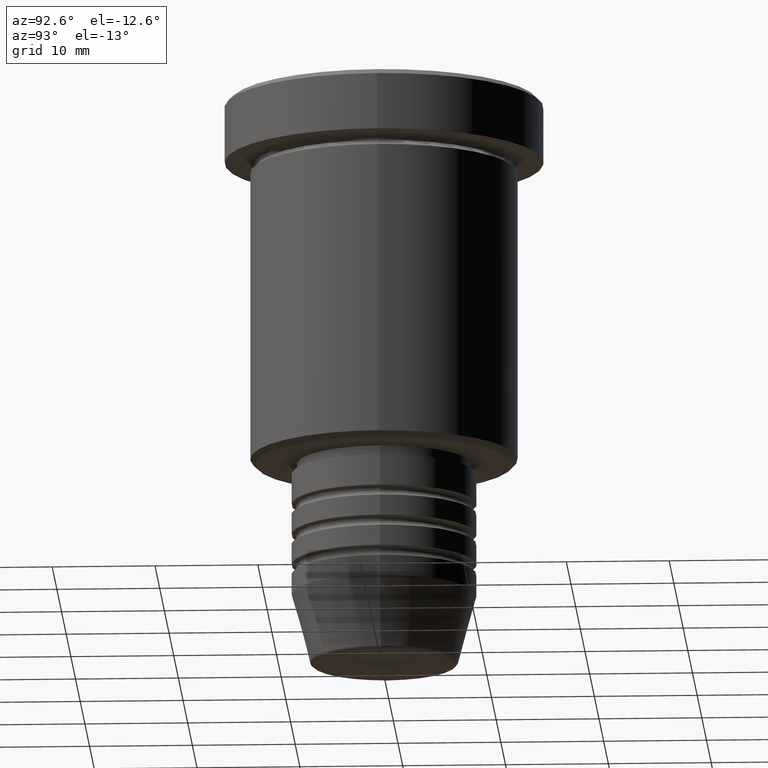
[diagram: clean part render]
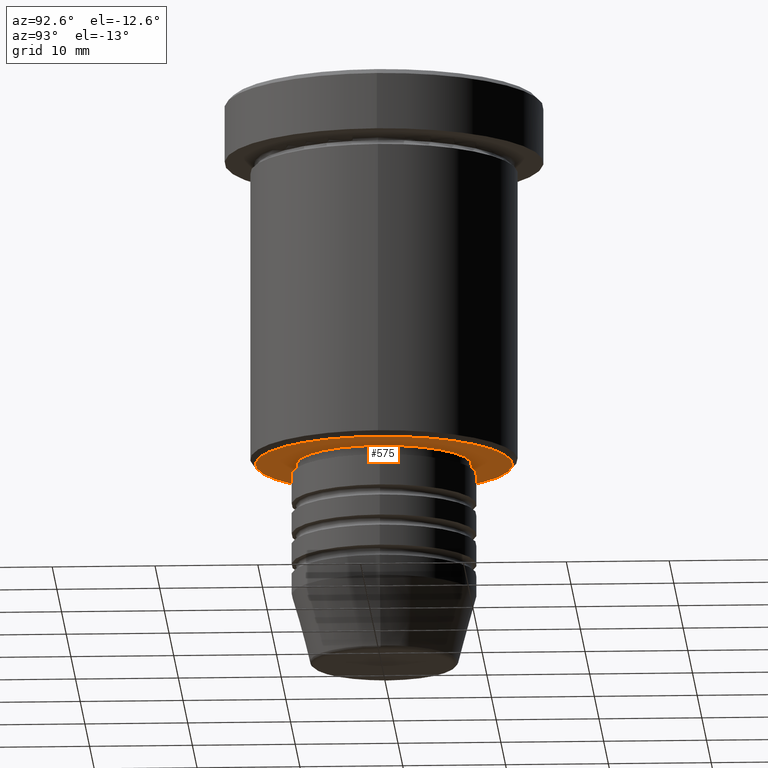
[diagram: same view with one face highlighted and labeled with its STEP entity id]
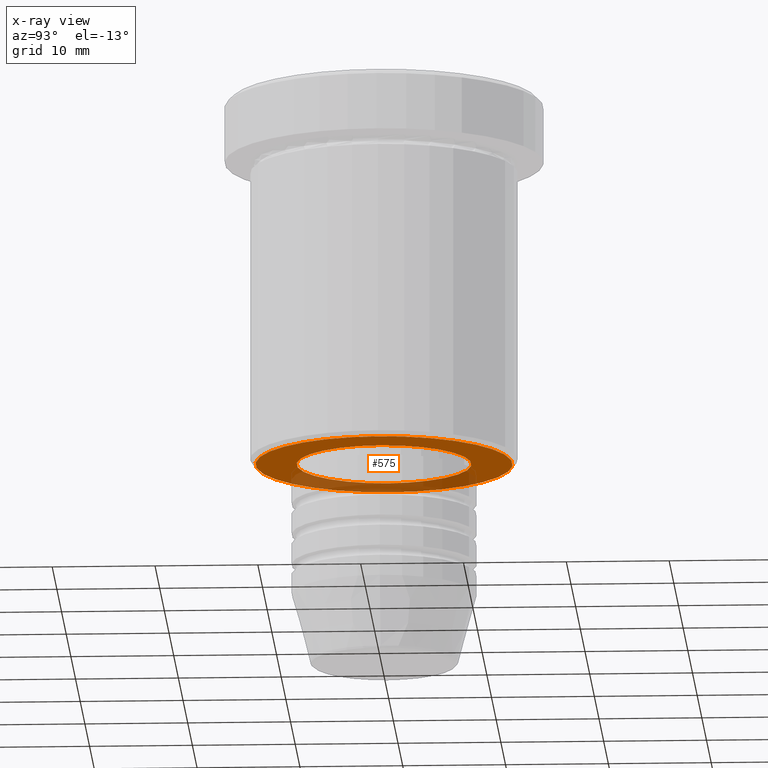
[diagram: x-ray of the same camera — body ghosted, the highlighted face saturated]
A machine part, auxiliary view. The second image highlights one B-rep face of the part: STEP entity #575.
The next image is the same camera in x-ray: the body ghosted, the highlighted face saturated — about 31% of this face is hidden behind the body in this view.
In plain terms, the highlighted planar face has unit normal (0, 0, -1).
Its self-contained STEP definition (entity closure, byte-faithful):
#20 = CARTESIAN_POINT ( 'NONE',  ( -8.499999999999998224, 1.040949779275249943E-15, -36.00000000000000000 ) ) ;
#63 = CARTESIAN_POINT ( 'NONE',  ( 0.000000000000000000, 0.000000000000000000, -36.00000000000000000 ) ) ;
#91 = AXIS2_PLACEMENT_3D ( 'NONE', #282, #1001, #192 ) ;
#159 = CIRCLE ( 'NONE', #704, 8.499999999999998224 ) ;
#178 = ORIENTED_EDGE ( 'NONE', *, *, #1049, .T. ) ;
#192 = DIRECTION ( 'NONE',  ( -1.000000000000000000, 0.000000000000000000, 0.000000000000000000 ) ) ;
#194 = CARTESIAN_POINT ( 'NONE',  ( 8.499999999999998224, 0.000000000000000000, -36.00000000000000000 ) ) ;
#282 = CARTESIAN_POINT ( 'NONE',  ( 0.000000000000000000, 0.000000000000000000, -36.00000000000000000 ) ) ;
#340 = DIRECTION ( 'NONE',  ( 0.000000000000000000, 0.000000000000000000, -1.000000000000000000 ) ) ;
#421 = CARTESIAN_POINT ( 'NONE',  ( 12.49999999999998401, 0.000000000000000000, -36.00000000000000000 ) ) ;
#425 = PLANE ( 'NONE',  #1040 ) ;
#426 = EDGE_LOOP ( 'NONE', ( #178, #687 ) ) ;
#435 = DIRECTION ( 'NONE',  ( -0.000000000000000000, -0.000000000000000000, 1.000000000000000000 ) ) ;
#457 = EDGE_CURVE ( 'NONE', #633, #468, #1141, .T. ) ;
#468 = VERTEX_POINT ( 'NONE', #194 ) ;
#575 = ADVANCED_FACE ( 'NONE', ( #776, #953 ), #425, .T. ) ;
#626 = AXIS2_PLACEMENT_3D ( 'NONE', #1087, #635, #817 ) ;
#627 = CIRCLE ( 'NONE', #91, 12.49999999999998401 ) ;
#633 = VERTEX_POINT ( 'NONE', #20 ) ;
#635 = DIRECTION ( 'NONE',  ( -0.000000000000000000, -0.000000000000000000, 1.000000000000000000 ) ) ;
#642 = ORIENTED_EDGE ( 'NONE', *, *, #457, .T. ) ;
#687 = ORIENTED_EDGE ( 'NONE', *, *, #727, .T. ) ;
#690 = CARTESIAN_POINT ( 'NONE',  ( 0.000000000000000000, 13.00000000000000000, -36.00000000000000000 ) ) ;
#695 = DIRECTION ( 'NONE',  ( -1.000000000000000000, 0.000000000000000000, -0.000000000000000000 ) ) ;
#704 = AXIS2_PLACEMENT_3D ( 'NONE', #885, #435, #1053 ) ;
#727 = EDGE_CURVE ( 'NONE', #1046, #746, #627, .T. ) ;
#746 = VERTEX_POINT ( 'NONE', #421 ) ;
#776 = FACE_OUTER_BOUND ( 'NONE', #426, .T. ) ;
#817 = DIRECTION ( 'NONE',  ( 1.000000000000000000, 0.000000000000000000, 0.000000000000000000 ) ) ;
#871 = CIRCLE ( 'NONE', #963, 12.49999999999998401 ) ;
#885 = CARTESIAN_POINT ( 'NONE',  ( 0.000000000000000000, 0.000000000000000000, -36.00000000000000000 ) ) ;
#917 = EDGE_LOOP ( 'NONE', ( #1152, #642 ) ) ;
#953 = FACE_BOUND ( 'NONE', #917, .T. ) ;
#963 = AXIS2_PLACEMENT_3D ( 'NONE', #63, #1070, #968 ) ;
#968 = DIRECTION ( 'NONE',  ( -1.000000000000000000, 0.000000000000000000, 0.000000000000000000 ) ) ;
#969 = CARTESIAN_POINT ( 'NONE',  ( -12.49999999999998401, 1.561424668912874125E-15, -36.00000000000000000 ) ) ;
#1001 = DIRECTION ( 'NONE',  ( 0.000000000000000000, 0.000000000000000000, -1.000000000000000000 ) ) ;
#1015 = EDGE_CURVE ( 'NONE', #468, #633, #159, .T. ) ;
#1040 = AXIS2_PLACEMENT_3D ( 'NONE', #690, #340, #695 ) ;
#1046 = VERTEX_POINT ( 'NONE', #969 ) ;
#1049 = EDGE_CURVE ( 'NONE', #746, #1046, #871, .T. ) ;
#1053 = DIRECTION ( 'NONE',  ( 1.000000000000000000, 0.000000000000000000, 0.000000000000000000 ) ) ;
#1070 = DIRECTION ( 'NONE',  ( 0.000000000000000000, 0.000000000000000000, -1.000000000000000000 ) ) ;
#1087 = CARTESIAN_POINT ( 'NONE',  ( 0.000000000000000000, 0.000000000000000000, -36.00000000000000000 ) ) ;
#1141 = CIRCLE ( 'NONE', #626, 8.499999999999998224 ) ;
#1152 = ORIENTED_EDGE ( 'NONE', *, *, #1015, .T. ) ;